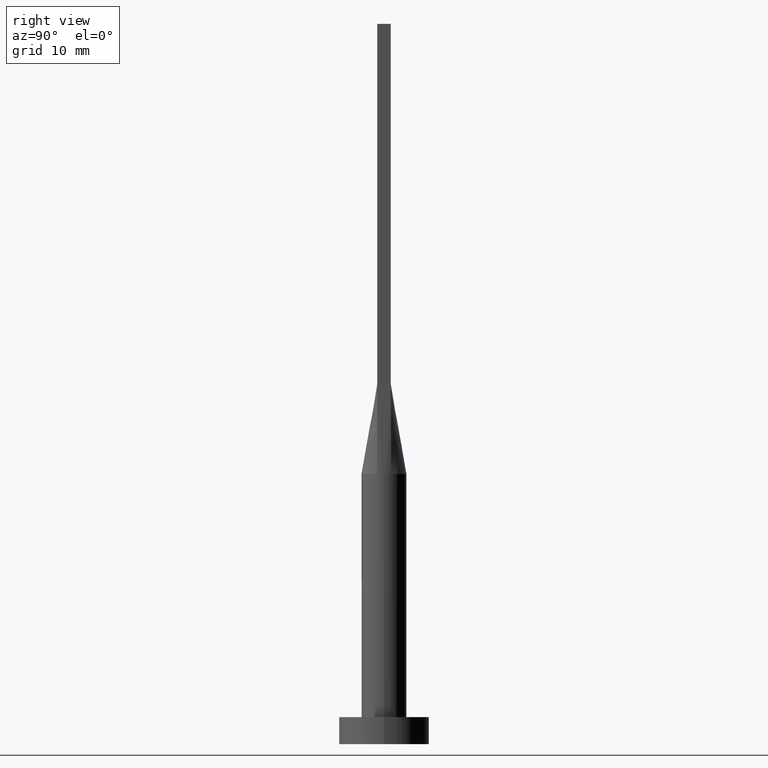
[diagram: clean part render]
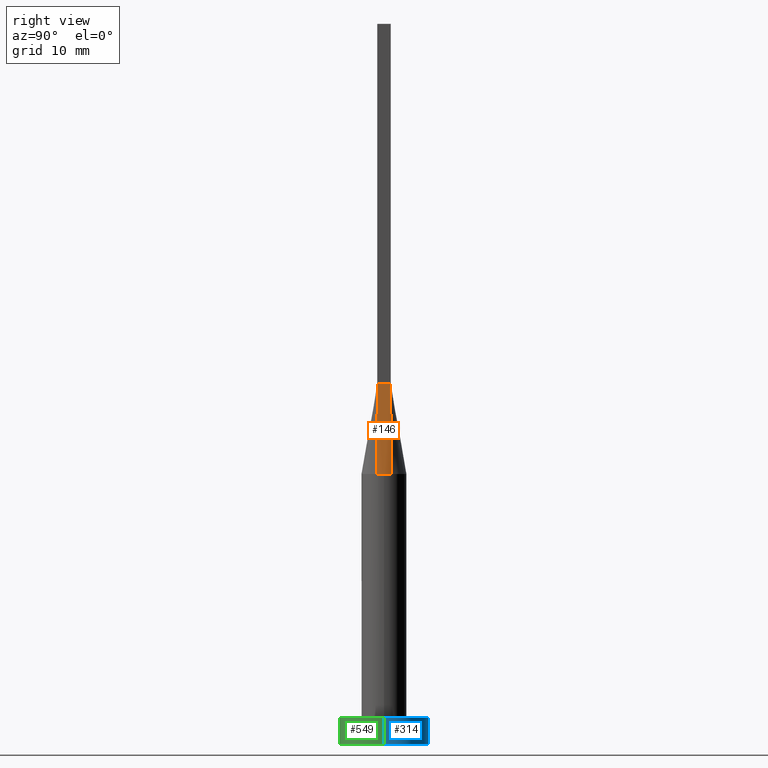
[diagram: same view with three faces highlighted in distinct colors, each labeled with its STEP entity id]
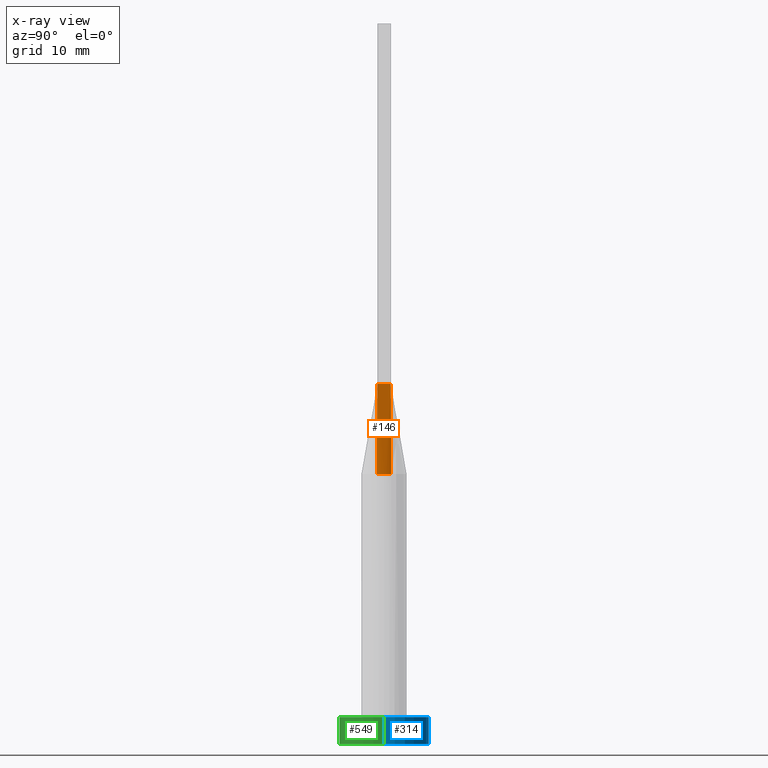
[diagram: x-ray of the same camera — body ghosted, the three highlighted faces saturated]
A machine part, right view with three faces highlighted in distinct colors.
The next image is the same camera in x-ray (body ghosted, the three faces saturated) — at least one of them is partly hidden behind the body in this view.
Their STEP definitions:

[orange] entity #146 — the highlighted face is a freeform B-spline surface patch.
#14 = B_SPLINE_SURFACE_WITH_KNOTS ( 'NONE', 3, 1, ( 
 ( #506, #117 ),
 ( #562, #165 ),
 ( #283, #162 ),
 ( #110, #293 ),
 ( #466, #286 ),
 ( #17, #20 ) ),
 .UNSPECIFIED., .F., .F., .F.,
 ( 4, 2, 4 ),
 ( 2, 2 ),
 ( 0.000000000000000000, 0.5000000000000000000, 1.000000000000000000 ),
 ( 0.000000000000000000, 1.000000000000000000 ),
 .UNSPECIFIED. ) ;
#17 = CARTESIAN_POINT ( 'NONE',  ( 2.371708245126284531, 0.7905694150420949917, 30.00000000000000000 ) ) ;
#20 = CARTESIAN_POINT ( 'NONE',  ( 2.249999999999999556, 0.7500000000000002220, 40.00000000000000000 ) ) ;
#22 = CARTESIAN_POINT ( 'NONE',  ( 2.250000000000000000, -0.7499999999999997780, 40.00000000000000000 ) ) ;
#26 = VECTOR ( 'NONE', #455, 1000.000000000000114 ) ;
#56 = AXIS2_PLACEMENT_3D ( 'NONE', #515, #394, #345 ) ;
#64 = VECTOR ( 'NONE', #454, 1000.000000000000114 ) ;
#66 = LINE ( 'NONE', #196, #26 ) ;
#79 = EDGE_CURVE ( 'NONE', #173, #573, #442, .T. ) ;
#99 = CARTESIAN_POINT ( 'NONE',  ( 2.249999999999999556, 0.7500000000000002220, 40.00000000000000000 ) ) ;
#103 = AXIS2_PLACEMENT_3D ( 'NONE', #504, #377, #512 ) ;
#105 = ORIENTED_EDGE ( 'NONE', *, *, #266, .T. ) ;
#110 = CARTESIAN_POINT ( 'NONE',  ( 2.499999999999999112, 0.2704627669472988161, 30.00000000000000000 ) ) ;
#117 = CARTESIAN_POINT ( 'NONE',  ( 2.250000000000000000, -0.7499999999999997780, 40.00000000000000000 ) ) ;
#119 = FACE_OUTER_BOUND ( 'NONE', #182, .T. ) ;
#136 = EDGE_CURVE ( 'NONE', #446, #311, #149, .T. ) ;
#146 = ADVANCED_FACE ( 'NONE', ( #119 ), #14, .T. ) ;
#149 = CIRCLE ( 'NONE', #103, 2.500000000000000000 ) ;
#162 = CARTESIAN_POINT ( 'NONE',  ( 2.249999999999999556, -0.2500000000000000000, 39.99999999999999289 ) ) ;
#165 = CARTESIAN_POINT ( 'NONE',  ( 2.250000000000000000, -0.4999999999999998890, 39.99999999999999289 ) ) ;
#173 = VERTEX_POINT ( 'NONE', #22 ) ;
#182 = EDGE_LOOP ( 'NONE', ( #581, #105, #313, #439, #350 ) ) ;
#195 = LINE ( 'NONE', #367, #64 ) ;
#196 = CARTESIAN_POINT ( 'NONE',  ( 2.310854122563142266, 0.7702847075210476069, 35.00000000000000000 ) ) ;
#197 = EDGE_CURVE ( 'NONE', #430, #573, #66, .T. ) ;
#231 = CARTESIAN_POINT ( 'NONE',  ( 2.371772892450305648, 0.7905912578404317159, 30.00000000000000000 ) ) ;
#233 = CARTESIAN_POINT ( 'NONE',  ( 2.371798206859841329, -0.7905998626979697796, 30.00000000000000000 ) ) ;
#266 = EDGE_CURVE ( 'NONE', #311, #430, #507, .T. ) ;
#283 = CARTESIAN_POINT ( 'NONE',  ( 2.499999999999999556, -0.2704627669472993157, 30.00000000000000000 ) ) ;
#286 = CARTESIAN_POINT ( 'NONE',  ( 2.249999999999999556, 0.5000000000000000000, 39.99999999999999289 ) ) ;
#293 = CARTESIAN_POINT ( 'NONE',  ( 2.249999999999999556, 0.2499999999999999445, 39.99999999999999289 ) ) ;
#311 = VERTEX_POINT ( 'NONE', #386 ) ;
#313 = ORIENTED_EDGE ( 'NONE', *, *, #197, .T. ) ;
#345 = DIRECTION ( 'NONE',  ( 1.000000000000000000, 0.000000000000000000, 0.000000000000000000 ) ) ;
#350 = ORIENTED_EDGE ( 'NONE', *, *, #485, .F. ) ;
#366 = DIRECTION ( 'NONE',  ( -2.891205793294678326E-16, 1.000000000000000000, -0.000000000000000000 ) ) ;
#367 = CARTESIAN_POINT ( 'NONE',  ( 2.310854122563142266, -0.7702847075210476069, 35.00000000000000000 ) ) ;
#377 = DIRECTION ( 'NONE',  ( 0.000000000000000000, 0.000000000000000000, 1.000000000000000000 ) ) ;
#386 = CARTESIAN_POINT ( 'NONE',  ( 2.499999999999999556, 3.110810548879990207E-17, 30.00000000000000000 ) ) ;
#394 = DIRECTION ( 'NONE',  ( 0.000000000000000000, 0.000000000000000000, 1.000000000000000000 ) ) ;
#430 = VERTEX_POINT ( 'NONE', #231 ) ;
#439 = ORIENTED_EDGE ( 'NONE', *, *, #79, .F. ) ;
#442 = LINE ( 'NONE', #99, #578 ) ;
#446 = VERTEX_POINT ( 'NONE', #233 ) ;
#454 = DIRECTION ( 'NONE',  ( -0.01216982305197521208, 0.004056607683991797497, 0.9999177162851859979 ) ) ;
#455 = DIRECTION ( 'NONE',  ( -0.01216982305197525371, -0.004056607683991722904, 0.9999177162851859979 ) ) ;
#466 = CARTESIAN_POINT ( 'NONE',  ( 2.455041578459617568, 0.5405694150420948807, 30.00000000000000355 ) ) ;
#485 = EDGE_CURVE ( 'NONE', #446, #173, #195, .T. ) ;
#504 = CARTESIAN_POINT ( 'NONE',  ( 0.000000000000000000, 0.000000000000000000, 30.00000000000000000 ) ) ;
#506 = CARTESIAN_POINT ( 'NONE',  ( 2.371708245126284531, -0.7905694150420953248, 30.00000000000000000 ) ) ;
#507 = CIRCLE ( 'NONE', #56, 2.500000000000000000 ) ;
#512 = DIRECTION ( 'NONE',  ( 1.000000000000000000, -4.440892098500626162E-15, 0.000000000000000000 ) ) ;
#515 = CARTESIAN_POINT ( 'NONE',  ( 0.000000000000000000, 0.000000000000000000, 30.00000000000000000 ) ) ;
#554 = CARTESIAN_POINT ( 'NONE',  ( 2.249999999999999556, 0.7500000000000002220, 40.00000000000000000 ) ) ;
#562 = CARTESIAN_POINT ( 'NONE',  ( 2.455041578459617568, -0.5405694150420953248, 30.00000000000000355 ) ) ;
#573 = VERTEX_POINT ( 'NONE', #554 ) ;
#578 = VECTOR ( 'NONE', #366, 1000.000000000000000 ) ;
#581 = ORIENTED_EDGE ( 'NONE', *, *, #136, .T. ) ;

[blue] entity #314 — the highlighted cylindrical surface (partial cylindrical patch) has radius 5 mm, axis along (-0, -0, -1).
#5 = ORIENTED_EDGE ( 'NONE', *, *, #502, .F. ) ;
#15 = AXIS2_PLACEMENT_3D ( 'NONE', #172, #301, #216 ) ;
#19 = CARTESIAN_POINT ( 'NONE',  ( -5.000000000000000000, 0.000000000000000000, 3.000000000000000000 ) ) ;
#81 = ORIENTED_EDGE ( 'NONE', *, *, #355, .T. ) ;
#84 = AXIS2_PLACEMENT_3D ( 'NONE', #145, #398, #443 ) ;
#112 = DIRECTION ( 'NONE',  ( -0.000000000000000000, -0.000000000000000000, -1.000000000000000000 ) ) ;
#121 = CYLINDRICAL_SURFACE ( 'NONE', #15, 5.000000000000000000 ) ;
#140 = LINE ( 'NONE', #537, #488 ) ;
#145 = CARTESIAN_POINT ( 'NONE',  ( 0.000000000000000000, 0.000000000000000000, 0.000000000000000000 ) ) ;
#172 = CARTESIAN_POINT ( 'NONE',  ( 0.000000000000000000, 0.000000000000000000, 3.000000000000000000 ) ) ;
#175 = CARTESIAN_POINT ( 'NONE',  ( -5.000000000000000000, 0.000000000000000000, 0.000000000000000000 ) ) ;
#189 = ORIENTED_EDGE ( 'NONE', *, *, #566, .F. ) ;
#191 = EDGE_LOOP ( 'NONE', ( #189, #265, #81, #5 ) ) ;
#200 = DIRECTION ( 'NONE',  ( 0.000000000000000000, 0.000000000000000000, 1.000000000000000000 ) ) ;
#216 = DIRECTION ( 'NONE',  ( -1.000000000000000000, 0.000000000000000000, 0.000000000000000000 ) ) ;
#217 = VERTEX_POINT ( 'NONE', #368 ) ;
#241 = CARTESIAN_POINT ( 'NONE',  ( 0.000000000000000000, 0.000000000000000000, 3.000000000000000000 ) ) ;
#265 = ORIENTED_EDGE ( 'NONE', *, *, #336, .T. ) ;
#268 = AXIS2_PLACEMENT_3D ( 'NONE', #241, #200, #372 ) ;
#301 = DIRECTION ( 'NONE',  ( -0.000000000000000000, -0.000000000000000000, -1.000000000000000000 ) ) ;
#314 = ADVANCED_FACE ( 'NONE', ( #569 ), #121, .T. ) ;
#318 = VERTEX_POINT ( 'NONE', #175 ) ;
#325 = VERTEX_POINT ( 'NONE', #406 ) ;
#336 = EDGE_CURVE ( 'NONE', #397, #325, #140, .T. ) ;
#355 = EDGE_CURVE ( 'NONE', #325, #318, #440, .T. ) ;
#368 = CARTESIAN_POINT ( 'NONE',  ( -5.000000000000000000, 0.000000000000000000, 3.000000000000000000 ) ) ;
#372 = DIRECTION ( 'NONE',  ( 1.000000000000000000, 0.000000000000000000, 0.000000000000000000 ) ) ;
#397 = VERTEX_POINT ( 'NONE', #493 ) ;
#398 = DIRECTION ( 'NONE',  ( 0.000000000000000000, 0.000000000000000000, 1.000000000000000000 ) ) ;
#406 = CARTESIAN_POINT ( 'NONE',  ( 5.000000000000000000, 6.123233995736766282E-16, 0.000000000000000000 ) ) ;
#440 = CIRCLE ( 'NONE', #84, 5.000000000000000000 ) ;
#443 = DIRECTION ( 'NONE',  ( 1.000000000000000000, 0.000000000000000000, 0.000000000000000000 ) ) ;
#467 = CIRCLE ( 'NONE', #268, 5.000000000000000000 ) ;
#488 = VECTOR ( 'NONE', #489, 1000.000000000000000 ) ;
#489 = DIRECTION ( 'NONE',  ( -0.000000000000000000, -0.000000000000000000, -1.000000000000000000 ) ) ;
#493 = CARTESIAN_POINT ( 'NONE',  ( 5.000000000000000000, 6.123233995736766282E-16, 3.000000000000000000 ) ) ;
#502 = EDGE_CURVE ( 'NONE', #217, #318, #550, .T. ) ;
#536 = VECTOR ( 'NONE', #112, 1000.000000000000000 ) ;
#537 = CARTESIAN_POINT ( 'NONE',  ( 5.000000000000000000, 6.123233995736766282E-16, 3.000000000000000000 ) ) ;
#550 = LINE ( 'NONE', #19, #536 ) ;
#566 = EDGE_CURVE ( 'NONE', #397, #217, #467, .T. ) ;
#569 = FACE_OUTER_BOUND ( 'NONE', #191, .T. ) ;

[green] entity #549 — the highlighted cylindrical surface (partial cylindrical patch) has radius 5 mm, axis along (-0, -0, -1).
#19 = CARTESIAN_POINT ( 'NONE',  ( -5.000000000000000000, 0.000000000000000000, 3.000000000000000000 ) ) ;
#55 = ORIENTED_EDGE ( 'NONE', *, *, #245, .F. ) ;
#62 = CARTESIAN_POINT ( 'NONE',  ( 0.000000000000000000, 0.000000000000000000, 3.000000000000000000 ) ) ;
#70 = DIRECTION ( 'NONE',  ( -0.000000000000000000, -0.000000000000000000, -1.000000000000000000 ) ) ;
#98 = CARTESIAN_POINT ( 'NONE',  ( 0.000000000000000000, 0.000000000000000000, 0.000000000000000000 ) ) ;
#109 = CYLINDRICAL_SURFACE ( 'NONE', #477, 5.000000000000000000 ) ;
#112 = DIRECTION ( 'NONE',  ( -0.000000000000000000, -0.000000000000000000, -1.000000000000000000 ) ) ;
#140 = LINE ( 'NONE', #537, #488 ) ;
#170 = ORIENTED_EDGE ( 'NONE', *, *, #380, .T. ) ;
#175 = CARTESIAN_POINT ( 'NONE',  ( -5.000000000000000000, 0.000000000000000000, 0.000000000000000000 ) ) ;
#211 = CIRCLE ( 'NONE', #337, 5.000000000000000000 ) ;
#213 = EDGE_LOOP ( 'NONE', ( #498, #55, #400, #170 ) ) ;
#217 = VERTEX_POINT ( 'NONE', #368 ) ;
#245 = EDGE_CURVE ( 'NONE', #217, #397, #211, .T. ) ;
#318 = VERTEX_POINT ( 'NONE', #175 ) ;
#325 = VERTEX_POINT ( 'NONE', #406 ) ;
#326 = DIRECTION ( 'NONE',  ( -1.000000000000000000, 0.000000000000000000, 0.000000000000000000 ) ) ;
#336 = EDGE_CURVE ( 'NONE', #397, #325, #140, .T. ) ;
#337 = AXIS2_PLACEMENT_3D ( 'NONE', #469, #572, #472 ) ;
#356 = DIRECTION ( 'NONE',  ( 0.000000000000000000, 0.000000000000000000, 1.000000000000000000 ) ) ;
#362 = DIRECTION ( 'NONE',  ( 1.000000000000000000, 0.000000000000000000, 0.000000000000000000 ) ) ;
#368 = CARTESIAN_POINT ( 'NONE',  ( -5.000000000000000000, 0.000000000000000000, 3.000000000000000000 ) ) ;
#380 = EDGE_CURVE ( 'NONE', #318, #325, #577, .T. ) ;
#397 = VERTEX_POINT ( 'NONE', #493 ) ;
#400 = ORIENTED_EDGE ( 'NONE', *, *, #502, .T. ) ;
#406 = CARTESIAN_POINT ( 'NONE',  ( 5.000000000000000000, 6.123233995736766282E-16, 0.000000000000000000 ) ) ;
#469 = CARTESIAN_POINT ( 'NONE',  ( 0.000000000000000000, 0.000000000000000000, 3.000000000000000000 ) ) ;
#472 = DIRECTION ( 'NONE',  ( 1.000000000000000000, 0.000000000000000000, 0.000000000000000000 ) ) ;
#477 = AXIS2_PLACEMENT_3D ( 'NONE', #62, #70, #326 ) ;
#488 = VECTOR ( 'NONE', #489, 1000.000000000000000 ) ;
#489 = DIRECTION ( 'NONE',  ( -0.000000000000000000, -0.000000000000000000, -1.000000000000000000 ) ) ;
#493 = CARTESIAN_POINT ( 'NONE',  ( 5.000000000000000000, 6.123233995736766282E-16, 3.000000000000000000 ) ) ;
#498 = ORIENTED_EDGE ( 'NONE', *, *, #336, .F. ) ;
#502 = EDGE_CURVE ( 'NONE', #217, #318, #550, .T. ) ;
#511 = FACE_OUTER_BOUND ( 'NONE', #213, .T. ) ;
#536 = VECTOR ( 'NONE', #112, 1000.000000000000000 ) ;
#537 = CARTESIAN_POINT ( 'NONE',  ( 5.000000000000000000, 6.123233995736766282E-16, 3.000000000000000000 ) ) ;
#549 = ADVANCED_FACE ( 'NONE', ( #511 ), #109, .T. ) ;
#550 = LINE ( 'NONE', #19, #536 ) ;
#556 = AXIS2_PLACEMENT_3D ( 'NONE', #98, #356, #362 ) ;
#572 = DIRECTION ( 'NONE',  ( 0.000000000000000000, 0.000000000000000000, 1.000000000000000000 ) ) ;
#577 = CIRCLE ( 'NONE', #556, 5.000000000000000000 ) ;